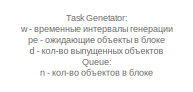
[diagram: root canvas - part 1/3, top left region]
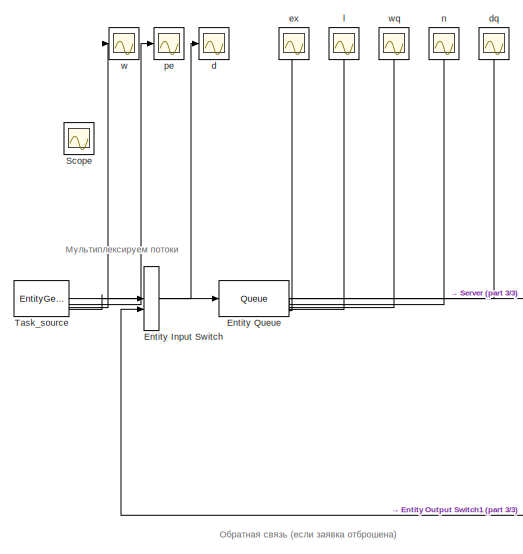
[diagram: root canvas - part 2/3, left side, full height]
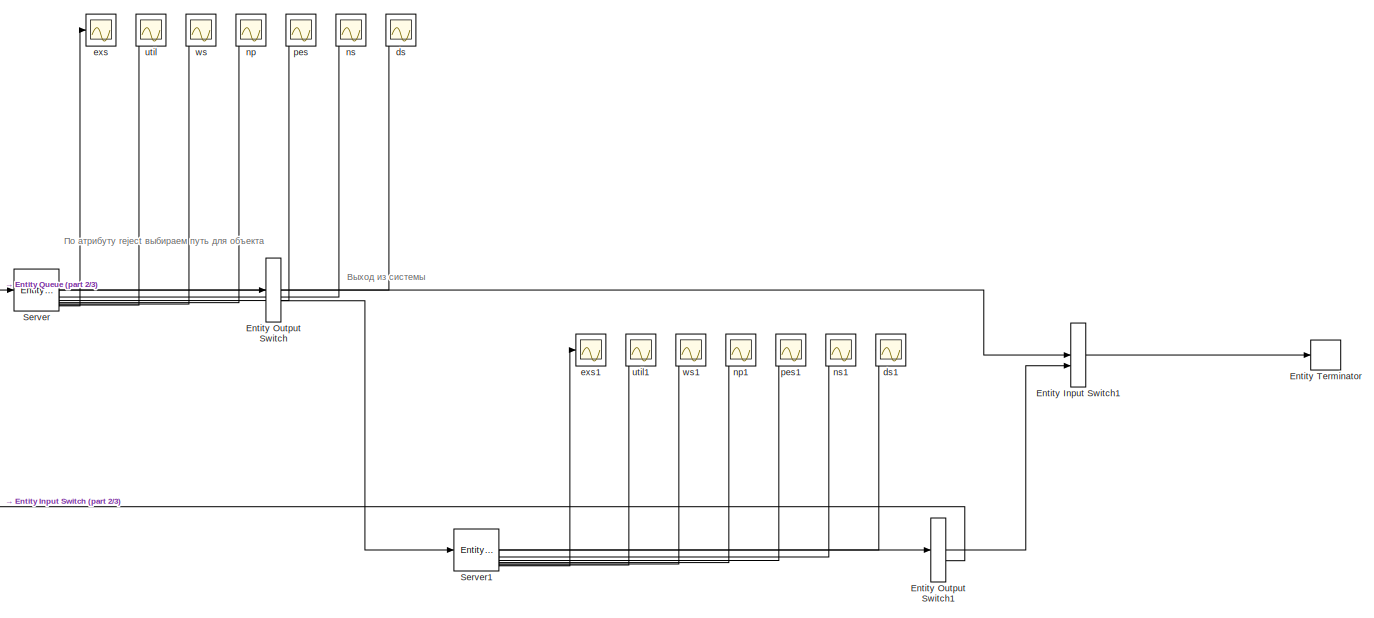
[diagram: root canvas - part 3/3, right side, full height]
MODEL slx_6f539e4ec71c
KIND model
CONFIG AbsTol = auto
CONFIG EnableMultiTasking = off
CONFIG FixedStep = auto
CONFIG MaxStep = auto
CONFIG MinStep = auto
CONFIG RelTol = 1e-3
CONFIG SampleTimeConstraint = Unconstrained
CONFIG SolverName = VariableStepAuto
CONFIG StartTime = 0.0
CONFIG StopTime = 20.0
WORKSPACE source: mxarray member
WORKSPACE lambda = 9
WORKSPACE max_prio = 10
WORKSPACE p_drop = 0.5
WORKSPACE service_time = 2
WORKSPACE u = 6
BLOCK [EntityInputSwitch] Entity Input Switch
  InputPortMap = u1,u2
  InputPortMessageModes = m,m
  OutputPortMap = o0
  OutputPortMessageModes = m
BLOCK [EntityInputSwitch] Entity Input Switch1
  InputPortMap = u1,u2
  InputPortMessageModes = m,m
  OutputPortMap = o0
  OutputPortMessageModes = m
BLOCK [EntityOutputSwitch] Entity Output Switch
  InputPortMap = u1
  InputPortMessageModes = m
  OutputPortMap = o0,o1
  OutputPortMessageModes = m,m
  SwitchAttributeName = reject
  SwitchingCriterion = From attribute
BLOCK [EntityOutputSwitch] Entity Output Switch1
  InputPortMap = u1
  InputPortMessageModes = m
  OutputPortMap = o0,o1
  OutputPortMessageModes = m,m
  SwitchAttributeName = Attribute1
  SwitchingCriterion = Round robin
BLOCK [Queue] Entity Queue
  AverageQueueLength = on
  AverageWait = on
  Capacity = 50
  InputPortMap = u0
  InputPortMessageModes = m
  NumEntitiesExtracted = on
  NumberEntitiesDeparted = on
  NumberEntitiesInBlock = on
  OutputPortMap = o0,o1,o2,o3,o7,o5
  OutputPortMessageModes = n,n,n,n,n,m
  PrioritySource = priority
  QueueType = Priority
BLOCK [EntityTerminator] Entity Terminator
  InputPortMap = u0
  InputPortMessageModes = m
BLOCK [Scope] Scope
  Floating = off
  IOType = viewer
  NumInputPorts = 1
  ScopeSpecificationString = Simulink.scopes.TimeScopeBlockCfg('CurrentConfiguration', extmgr.ConfigurationSet(extmgr.Configuration('Core','General UI',true),extmgr.Configuration('Core','Source UI',true),extmgr.Configuration('Sources','WiredSimulink',true,'DataLoggingVariableName','ScopeData13'),extmgr.Configuration('Visuals','Time Domain',true,'SerializedDisplays',{struct('MinYLimReal','-10.00000','MaxYLimReal','10.00000','Y...<+1366ch>
BLOCK [EntityServer] Server
  AverageWait = on
  Capacity = 4
  EntryAction = persistent rngInit;\nif isempty(rngInit)\n    seed = 12345;\n    rng(seed);\n    rngInit = true;\nend\n\nif rand < p_drop\n    entity.reject = 1;\nelse\n    entity.reject = 2;\n    pause(0.2)\nend
  InputPortMap = u2
  InputPortMessageModes = m
  NumEntitiesExtracted = on
  NumberEntitiesDeparted = on
  NumberEntitiesInBlock = on
  NumberEntitiesPending = on
  OutputPortMap = o0,o1,o2,o3,o4,o5,o12,o9
  OutputPortMessageModes = n,n,n,n,n,n,n,m
  PendingEntityPresentInBlock = on
  ServiceTimeAction = dt = exprnd(1/u);
  ServiceTimeSource = MATLAB action
  SortingAttributeName = priority
  Utilization = on
BLOCK [EntityServer] Server1
  AverageWait = on
  Capacity = 4
  EntryAction = persistent rngInit;\nif isempty(rngInit)\n    seed = 12345;\n    rng(seed);\n    rngInit = true;\nend\n\nif rand < p_drop\n    entity.reject = 1;\nelse\n    entity.reject = 2;\n    pause(0.2)\nend
  InputPortMap = u2
  InputPortMessageModes = m
  NumEntitiesExtracted = on
  NumberEntitiesDeparted = on
  NumberEntitiesInBlock = on
  NumberEntitiesPending = on
  OutputPortMap = o0,o1,o2,o3,o4,o5,o12,o9
  OutputPortMessageModes = n,n,n,n,n,n,n,m
  PendingEntityPresentInBlock = on
  ServiceTimeAction = dt = exprnd(1/u);
  ServiceTimeSource = MATLAB action
  SortingAttributeName = priority
  Utilization = on
BLOCK [EntityGenerator] Task_source
  AttributeInitialValue = 1|1
  AttributeName = priority|reject
  AverageIntergenerationTime = on
  EntityPriority = 1
  EntityType = Structured
  EntityTypeName = Entity
  GenerateAction = persistent rngInit id;\nif isempty(rngInit)\n    seed = 12345;\n    rng(seed);\n    rngInit = true;\n    id = 0;\nend\n\n% Pattern: Uniform distribution\n% m: Minimum, M: Maximum\nm = 0; M = max_prio;\nTask_source.priority = m + (M - m) * rand;
  IntergenerationTimeAction = dt = exprnd(1/lambda);
  NumberEntitiesDeparted = on
  OutputPortMap = o0,o1,o2,o3
  OutputPortMessageModes = n,n,n,m
  PendingEntityInBlock = on
  Period = 1/lambda
  TimeSource = MATLAB action
BLOCK [Scope] d
  Floating = off
  NumInputPorts = 1
  ScopeSpecificationString = Simulink.scopes.TimeScopeBlockCfg('CurrentConfiguration', extmgr.ConfigurationSet(extmgr.Configuration('Core','General UI',true),extmgr.Configuration('Core','Source UI',true),extmgr.Configuration('Sources','WiredSimulink',true,'DataLoggingVariableName','ScopeData2'),extmgr.Configuration('Visuals','Time Domain',true,'SerializedDisplays',{struct('MinYLimReal','-20.5','MaxYLimReal','194.5','YLabelRea...<+1438ch>
BLOCK [Scope] dq
  Floating = off
  NumInputPorts = 1
  ScopeSpecificationString = Simulink.scopes.TimeScopeBlockCfg('CurrentConfiguration', extmgr.ConfigurationSet(extmgr.Configuration('Core','General UI',true),extmgr.Configuration('Core','Source UI',true),extmgr.Configuration('Sources','WiredSimulink',true,'DataLoggingVariableName','ScopeData5'),extmgr.Configuration('Visuals','Time Domain',true,'SerializedDisplays',{struct('MinYLimReal','-20.75','MaxYLimReal','196.75','YLabelR...<+1400ch>
BLOCK [Scope] ds
  Floating = off
  NumInputPorts = 1
  ScopeSpecificationString = Simulink.scopes.TimeScopeBlockCfg('CurrentConfiguration', extmgr.ConfigurationSet(extmgr.Configuration('Core','General UI',true),extmgr.Configuration('Core','Source UI',true),extmgr.Configuration('Sources','WiredSimulink',true,'DataLoggingVariableName','ScopeData12'),extmgr.Configuration('Visuals','Time Domain',true,'SerializedDisplays',{struct('MinYLimReal','-27.625','MaxYLimReal','258.625','YLab...<+1400ch>
BLOCK [Scope] ds1
  Floating = off
  NumInputPorts = 1
  ScopeSpecificationString = Simulink.scopes.TimeScopeBlockCfg('CurrentConfiguration', extmgr.ConfigurationSet(extmgr.Configuration('Core','General UI',true),extmgr.Configuration('Core','Source UI',true),extmgr.Configuration('Sources','WiredSimulink',true,'DataLoggingVariableName','ScopeData1'),extmgr.Configuration('Visuals','Time Domain',true,'SerializedDisplays',{struct('MinYLimReal','-13.25','MaxYLimReal','129.25','YLabelR...<+1396ch>
BLOCK [Scope] ex
  Floating = off
  NumInputPorts = 1
  ScopeSpecificationString = Simulink.scopes.TimeScopeBlockCfg('CurrentConfiguration', extmgr.ConfigurationSet(extmgr.Configuration('Core','General UI',true),extmgr.Configuration('Core','Source UI',true),extmgr.Configuration('Sources','WiredSimulink',true,'DataLoggingVariableName','ScopeData1'),extmgr.Configuration('Visuals','Time Domain',true,'SerializedDisplays',{struct('MinYLimReal','-10','MaxYLimReal','10','YLabelReal',''...<+774ch>
BLOCK [Scope] exs
  Floating = off
  NumInputPorts = 1
  ScopeSpecificationString = Simulink.scopes.TimeScopeBlockCfg('CurrentConfiguration', extmgr.ConfigurationSet(extmgr.Configuration('Core','General UI',true),extmgr.Configuration('Core','Source UI',true),extmgr.Configuration('Sources','WiredSimulink',true,'DataLoggingVariableName','ScopeData6'),extmgr.Configuration('Visuals','Time Domain',true,'SerializedDisplays',{struct('MinYLimReal','-10','MaxYLimReal','10','YLabelReal',''...<+763ch>
BLOCK [Scope] exs1
  Floating = off
  NumInputPorts = 1
  ScopeSpecificationString = Simulink.scopes.TimeScopeBlockCfg('CurrentConfiguration', extmgr.ConfigurationSet(extmgr.Configuration('Core','General UI',true),extmgr.Configuration('Core','Source UI',true),extmgr.Configuration('Sources','WiredSimulink',true,'DataLoggingVariableName','ScopeData2'),extmgr.Configuration('Visuals','Time Domain',true,'SerializedDisplays',{struct('MinYLimReal','-10','MaxYLimReal','10','YLabelReal',''...<+763ch>
BLOCK [Scope] l
  Floating = off
  NumInputPorts = 1
  ScopeSpecificationString = Simulink.scopes.TimeScopeBlockCfg('CurrentConfiguration', extmgr.ConfigurationSet(extmgr.Configuration('Core','General UI',true),extmgr.Configuration('Core','Source UI',true),extmgr.Configuration('Sources','WiredSimulink',true,'DataLoggingVariableName','ScopeData2'),extmgr.Configuration('Visuals','Time Domain',true,'SerializedDisplays',{struct('MinYLimReal','-0.02941','MaxYLimReal','0.2647','YLabe...<+1402ch>
BLOCK [Scope] n
  Floating = off
  NumInputPorts = 1
  ScopeSpecificationString = Simulink.scopes.TimeScopeBlockCfg('CurrentConfiguration', extmgr.ConfigurationSet(extmgr.Configuration('Core','General UI',true),extmgr.Configuration('Core','Source UI',true),extmgr.Configuration('Sources','WiredSimulink',true,'DataLoggingVariableName','ScopeData4'),extmgr.Configuration('Visuals','Time Domain',true,'SerializedDisplays',{struct('MinYLimReal','-1.375','MaxYLimReal','12.375','YLabelR...<+1396ch>
BLOCK [Scope] np
  Floating = off
  NumInputPorts = 1
  ScopeSpecificationString = Simulink.scopes.TimeScopeBlockCfg('CurrentConfiguration', extmgr.ConfigurationSet(extmgr.Configuration('Core','General UI',true),extmgr.Configuration('Core','Source UI',true),extmgr.Configuration('Sources','WiredSimulink',true,'DataLoggingVariableName','ScopeData9'),extmgr.Configuration('Visuals','Time Domain',true,'SerializedDisplays',{struct('MinYLimReal','-0.5','MaxYLimReal','4.5','YLabelReal',...<+1376ch>
BLOCK [Scope] np1
  Floating = off
  NumInputPorts = 1
  ScopeSpecificationString = Simulink.scopes.TimeScopeBlockCfg('CurrentConfiguration', extmgr.ConfigurationSet(extmgr.Configuration('Core','General UI',true),extmgr.Configuration('Core','Source UI',true),extmgr.Configuration('Sources','WiredSimulink',true,'DataLoggingVariableName','ScopeData3'),extmgr.Configuration('Visuals','Time Domain',true,'SerializedDisplays',{struct('MinYLimReal','-0.5','MaxYLimReal','4.5','YLabelReal',...<+1376ch>
BLOCK [Scope] ns
  Floating = off
  NumInputPorts = 1
  ScopeSpecificationString = Simulink.scopes.TimeScopeBlockCfg('CurrentConfiguration', extmgr.ConfigurationSet(extmgr.Configuration('Core','General UI',true),extmgr.Configuration('Core','Source UI',true),extmgr.Configuration('Sources','WiredSimulink',true,'DataLoggingVariableName','ScopeData11'),extmgr.Configuration('Visuals','Time Domain',true,'SerializedDisplays',{struct('MinYLimReal','-0.5','MaxYLimReal','4.5','YLabelReal'...<+1344ch>
BLOCK [Scope] ns1
  Floating = off
  NumInputPorts = 1
  ScopeSpecificationString = Simulink.scopes.TimeScopeBlockCfg('CurrentConfiguration', extmgr.ConfigurationSet(extmgr.Configuration('Core','General UI',true),extmgr.Configuration('Core','Source UI',true),extmgr.Configuration('Sources','WiredSimulink',true,'DataLoggingVariableName','ScopeData4'),extmgr.Configuration('Visuals','Time Domain',true,'SerializedDisplays',{struct('MinYLimReal','-0.125','MaxYLimReal','1.125','YLabelRe...<+1350ch>
BLOCK [Scope] pe
  Floating = off
  NumInputPorts = 1
  ScopeSpecificationString = Simulink.scopes.TimeScopeBlockCfg('CurrentConfiguration', extmgr.ConfigurationSet(extmgr.Configuration('Core','General UI',true),extmgr.Configuration('Core','Source UI',true),extmgr.Configuration('Sources','WiredSimulink',true,'DataLoggingVariableName','ScopeData3'),extmgr.Configuration('Visuals','Time Domain',true,'SerializedDisplays',{struct('MinYLimReal','-0.125','MaxYLimReal','1.125','YLabelRe...<+1434ch>
BLOCK [Scope] pes
  Floating = off
  NumInputPorts = 1
  ScopeSpecificationString = Simulink.scopes.TimeScopeBlockCfg('CurrentConfiguration', extmgr.ConfigurationSet(extmgr.Configuration('Core','General UI',true),extmgr.Configuration('Core','Source UI',true),extmgr.Configuration('Sources','WiredSimulink',true,'DataLoggingVariableName','ScopeData10'),extmgr.Configuration('Visuals','Time Domain',true,'SerializedDisplays',{struct('MinYLimReal','-0.125','MaxYLimReal','1.125','YLabelR...<+1356ch>
BLOCK [Scope] pes1
  Floating = off
  NumInputPorts = 1
  ScopeSpecificationString = Simulink.scopes.TimeScopeBlockCfg('CurrentConfiguration', extmgr.ConfigurationSet(extmgr.Configuration('Core','General UI',true),extmgr.Configuration('Core','Source UI',true),extmgr.Configuration('Sources','WiredSimulink',true,'DataLoggingVariableName','ScopeData5'),extmgr.Configuration('Visuals','Time Domain',true),extmgr.Configuration('Tools','Plot Navigation',true),extmgr.Configuration('Tools',...<+40ch>
BLOCK [Scope] util
  Floating = off
  NumInputPorts = 1
  ScopeSpecificationString = Simulink.scopes.TimeScopeBlockCfg('CurrentConfiguration', extmgr.ConfigurationSet(extmgr.Configuration('Core','General UI',true),extmgr.Configuration('Core','Source UI',true),extmgr.Configuration('Sources','WiredSimulink',true,'DataLoggingVariableName','ScopeData7'),extmgr.Configuration('Visuals','Time Domain',true,'SerializedDisplays',{struct('MinYLimReal','0.20818','MaxYLimReal','0.62641','YLabe...<+1402ch>
BLOCK [Scope] util1
  Floating = off
  NumInputPorts = 1
  ScopeSpecificationString = Simulink.scopes.TimeScopeBlockCfg('CurrentConfiguration', extmgr.ConfigurationSet(extmgr.Configuration('Core','General UI',true),extmgr.Configuration('Core','Source UI',true),extmgr.Configuration('Sources','WiredSimulink',true,'DataLoggingVariableName','ScopeData6'),extmgr.Configuration('Visuals','Time Domain',true,'SerializedDisplays',{struct('MinYLimReal','-0.04054','MaxYLimReal','0.36489','YLab...<+1404ch>
BLOCK [Scope] w
  Floating = off
  NumInputPorts = 1
  ScopeSpecificationString = Simulink.scopes.TimeScopeBlockCfg('CurrentConfiguration', extmgr.ConfigurationSet(extmgr.Configuration('Core','General UI',true),extmgr.Configuration('Core','Source UI',true),extmgr.Configuration('Sources','WiredSimulink',true,'DataLoggingVariableName','ScopeData1'),extmgr.Configuration('Visuals','Time Domain',true,'SerializedDisplays',{struct('MinYLimReal','-0.03139','MaxYLimReal','0.28248','YLab...<+1445ch>
BLOCK [Scope] wq
  Floating = off
  NumInputPorts = 1
  ScopeSpecificationString = Simulink.scopes.TimeScopeBlockCfg('CurrentConfiguration', extmgr.ConfigurationSet(extmgr.Configuration('Core','General UI',true),extmgr.Configuration('Core','Source UI',true),extmgr.Configuration('Sources','WiredSimulink',true,'DataLoggingVariableName','ScopeData3'),extmgr.Configuration('Visuals','Time Domain',true,'SerializedDisplays',{struct('MinYLimReal','-0.00219','MaxYLimReal','0.01972','YLab...<+1406ch>
BLOCK [Scope] ws
  Floating = off
  NumInputPorts = 1
  ScopeSpecificationString = Simulink.scopes.TimeScopeBlockCfg('CurrentConfiguration', extmgr.ConfigurationSet(extmgr.Configuration('Core','General UI',true),extmgr.Configuration('Core','Source UI',true),extmgr.Configuration('Sources','WiredSimulink',true,'DataLoggingVariableName','ScopeData8'),extmgr.Configuration('Visuals','Time Domain',true,'SerializedDisplays',{struct('MinYLimReal','0.07276','MaxYLimReal','0.20503','YLabe...<+1402ch>
BLOCK [Scope] ws1
  Floating = off
  NumInputPorts = 1
  ScopeSpecificationString = Simulink.scopes.TimeScopeBlockCfg('CurrentConfiguration', extmgr.ConfigurationSet(extmgr.Configuration('Core','General UI',true),extmgr.Configuration('Core','Source UI',true),extmgr.Configuration('Sources','WiredSimulink',true,'DataLoggingVariableName','ScopeData7'),extmgr.Configuration('Visuals','Time Domain',true,'SerializedDisplays',{struct('MinYLimReal','0.07202','MaxYLimReal','0.20511','YLabe...<+1400ch>
ANNOTATION (root): Task Genetator: w - временные интервалы генерации pe - ожидающие объекты в блоке d - кол-во выпущенных объектов Queue: n - кол-во объектов в блоке wq - среднее время ожидания l - средняя длина очереди ex - кол-во извлеченных объектов d - кол-во выпущенных объектов Server: np - кол-во ожидающих объектов util - утилизация (загруженность) Поменять параметры можно в workspace variable
ANNOTATION (root): Обратная связь (если заявка отброшена)
ANNOTATION (root): Выход из системы
ANNOTATION (root): Мультиплексируем потоки
ANNOTATION (root): По атрибуту reject выбираем путь для объекта
LINE Entity Input Switch1:1 -> Entity Terminator:1
LINE Entity Input Switch:1 -> Entity Queue:1
LINE Entity Output Switch1:1 -> Entity Input Switch1:2
LINE Entity Output Switch1:2 -> Entity Input Switch:2
LINE Entity Output Switch:1 -> Entity Input Switch1:1
LINE Entity Output Switch:2 -> Server1:1
LINE Entity Queue:1 -> dq:1
LINE Entity Queue:2 -> n:1
LINE Entity Queue:3 -> wq:1
LINE Entity Queue:4 -> l:1
LINE Entity Queue:5 -> ex:1
LINE Entity Queue:6 -> Server:1
LINE Server1:1 -> ds1:1
LINE Server1:2 -> ns1:1
LINE Server1:3 -> pes1:1
LINE Server1:4 -> np1:1
LINE Server1:5 -> ws1:1
LINE Server1:6 -> util1:1
LINE Server1:7 -> exs1:1
LINE Server1:8 -> Entity Output Switch1:1
LINE Server:1 -> ds:1
LINE Server:2 -> ns:1
LINE Server:3 -> pes:1
LINE Server:4 -> np:1
LINE Server:5 -> ws:1
LINE Server:6 -> util:1
LINE Server:7 -> exs:1
LINE Server:8 -> Entity Output Switch:1
LINE Task_source:1 -> d:1
LINE Task_source:2 -> pe:1
LINE Task_source:3 -> w:1
LINE Task_source:4 -> Entity Input Switch:1
